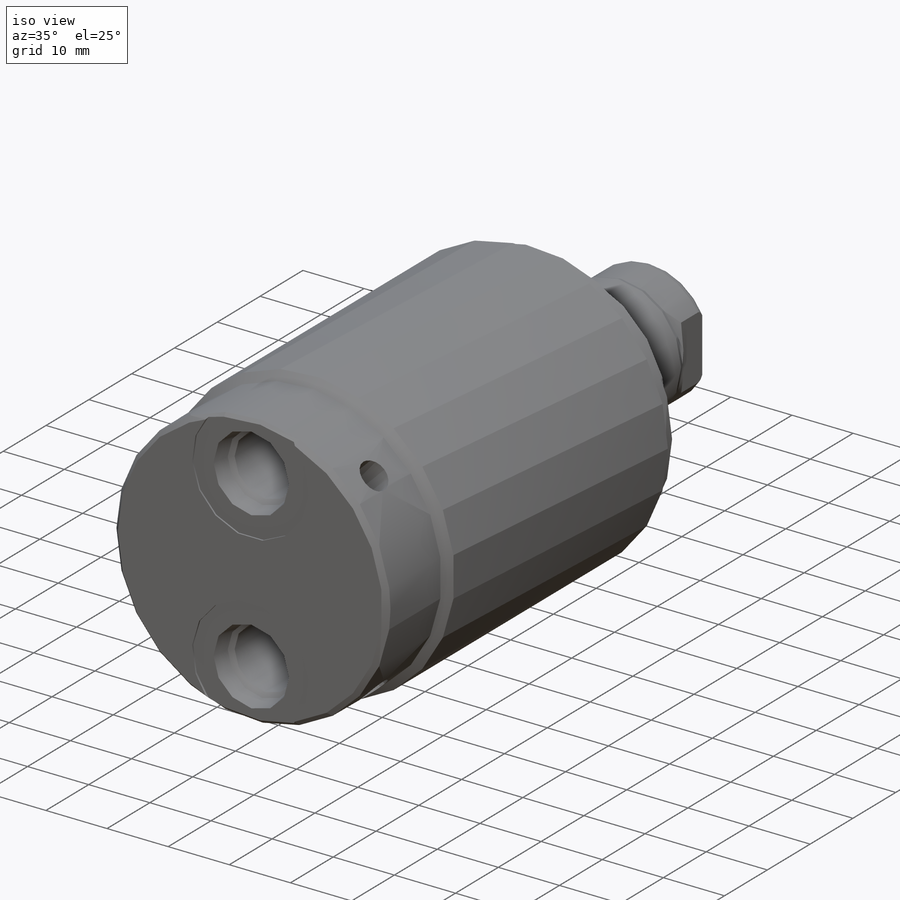
[diagram: iso view]
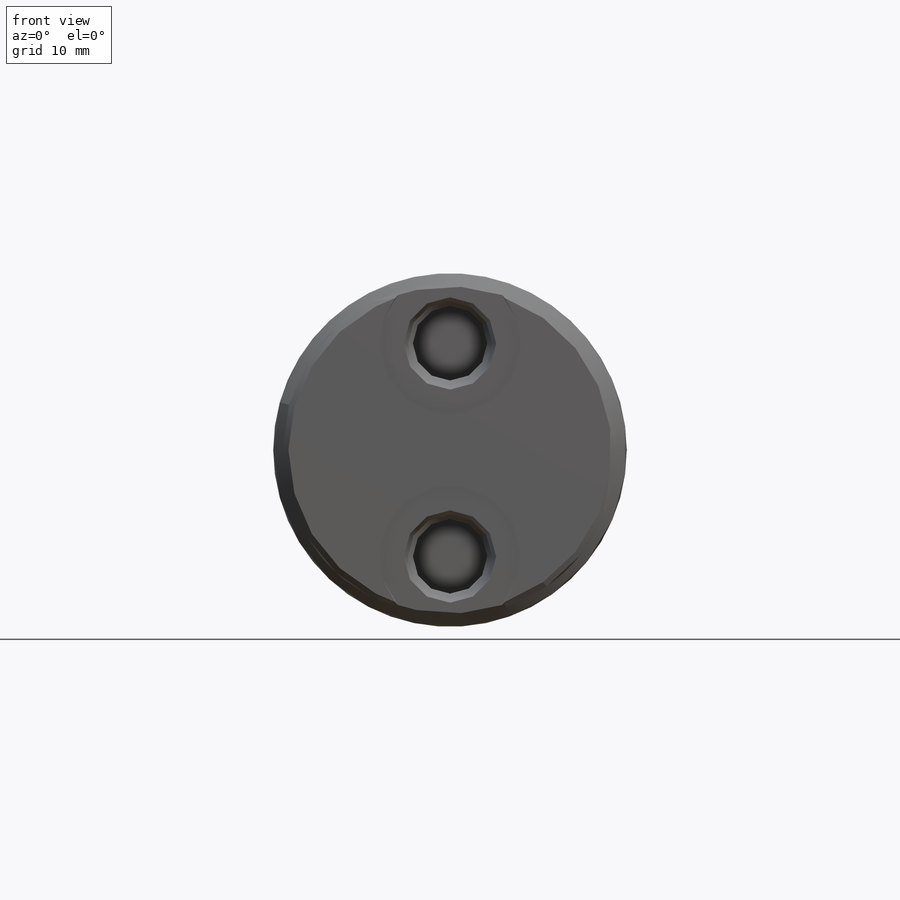
[diagram: front view]
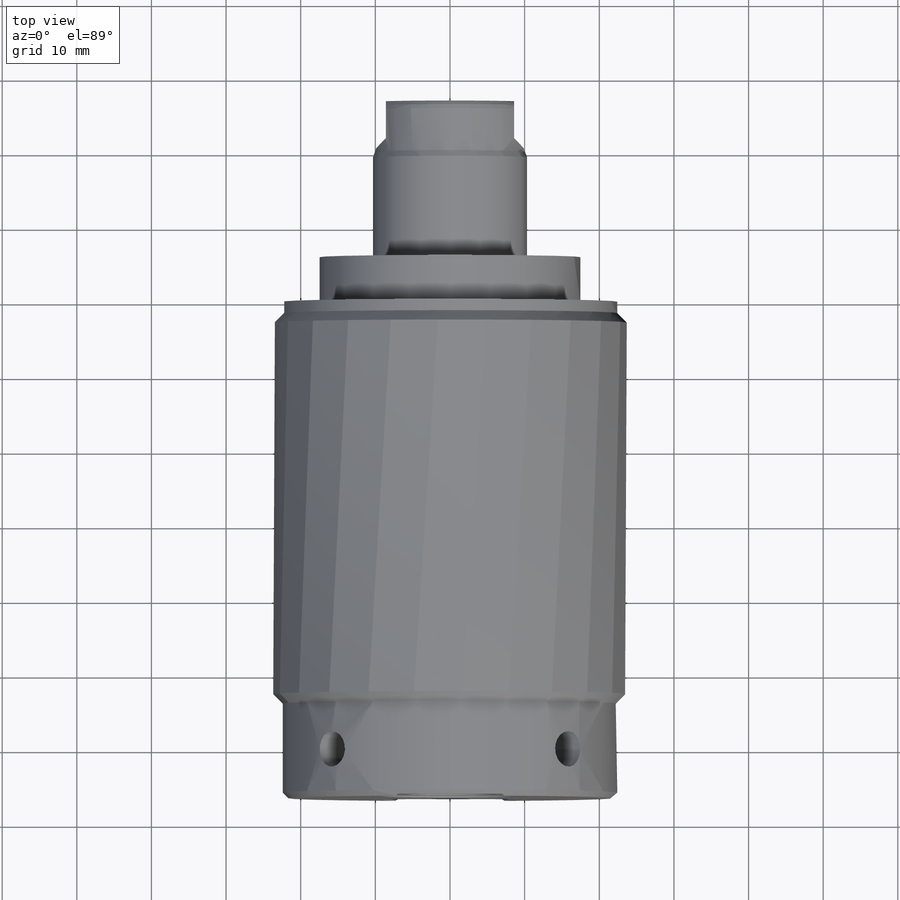
[diagram: top view]
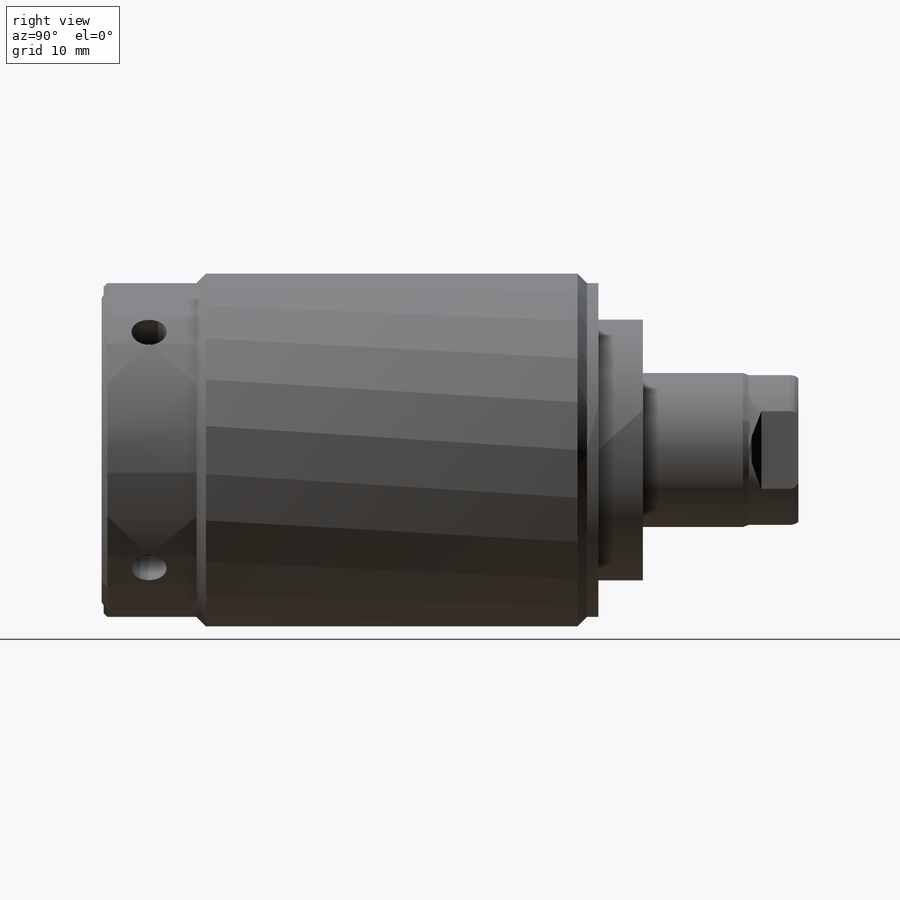
[diagram: right view]
SOLIDWORKS PART (.sldprt)
format: sldprt  version: not decoded by parser v0  size: 349,184 bytes
history: native  units: mm
features: sketch x11, cut_revolve x5, plane x3, extrude x2, material x1, chamfer x1, revolve x1, cut_extrude x1, hole x1, pattern_circular x1, pattern_linear x1 (+13 scaffold rows collapsed)
feature tree (41):
  scaffold x13  (default folders/planes/origin — collapsed)
  material  "Alloy Steel"
  plane  "Plane1"
  sketch  "Sketch1"  dims[D1=47.371mm]
  extrude  "Extrude1"  Depth=66.548mm
  sketch  "Sketch2"  dims[c1.D1=12.7mm c1.D2=~1.76013mm c2.D2=315.0deg c3.D2=44.831mm c3.D3=~1.76013mm c4.D3=45.0deg c4.D1=12.7mm]
  cut_revolve  "Cut-Revolve1"  Angle=360deg
  sketch  "Sketch3"  dims[c1.D1=1.2446mm c2.D1=45.0deg c2.D2=1.524mm]
  cut_revolve  "Cut-Revolve2"  Angle=360deg
  chamfer  "Chamfer1"  Distance=0.762mm Angle=45deg
  sketch  "S2D0002"  dims[c1.D1=13.97mm c1.D2=9.9568mm c1.D3=0.254mm c1.D4=12.3698mm c1.D5=~2.609729mm c2.D5=12.0deg c2.D6=~0.663907mm c3.D6=45.0deg c3.D7=2.5527mm c3.D5=~2.558082mm c4.D5=12.0deg c4.D6=~0.663907mm c5.D6=45.0deg c5.D1=19.05mm c5.D3=0.254mm c5.D7=2.5527mm c5.D8=13.97mm c5.D9=14.2748mm]
  cut_revolve  "Cut-Revolve3"  Angle=360deg
  sketch  "Sketch6"  dims[D1=34.925mm]
  extrude  "Extrude2"  Depth=5.969mm
  sketch  "Sketch7"  dims[D1=20.6375mm D2=20.828mm]
  revolve  "Revolve1"  Angle=360deg
  sketch  "S2D0001"  dims[c1.D1=8.763mm c1.D2=2.2352mm c2.D2=30.0deg c2.D3=14.8082mm c2.D4=6.5278mm]
  cut_revolve  "Cut-Revolve5"  Angle=360deg
  plane  "Plane8"
  sketch  "Sketch9"  dims[c1.D1=1.524mm c1.D2=1.016mm c1.D3=20.066mm c1.D4=~0.813816mm c2.D4=~20.556045deg c3.D4=0.762mm c3.D5=7.4168mm]
  cut_revolve  "Cut-Revolve6"  Angle=360deg
  sketch  "Sketch13"  dims[c1.D1=17.1704mm c1.D2=4.953mm c2.D2=135.0deg c2.D3=4.953mm]
  cut_extrude  "Cut-Extrude4"  Depth=39.68496mm
  plane  "Plane13"
  hole  "Hole1"  Diameter=4.7498mm Depth=4.7498mm
  sketch  "3DSketch2"  dims[D1=6.35mm]
  sketch  "Sketch14"  dims[Diameter=4.7498mm Depth=4.7498mm]
  pattern_circular  "CirPattern1"  Count=4 Angle=360deg
  pattern_linear  "LPattern1"  Count1=2 Count2=1 Spacing1=28.5496mm Spacing2=2.54mm
decode coverage: 24 of 24 modeling features carry decoded parameters
note: ~ marks probable driven/reference dimensions
note: suppression state not decoded; provenance and decode notes live in map.json
